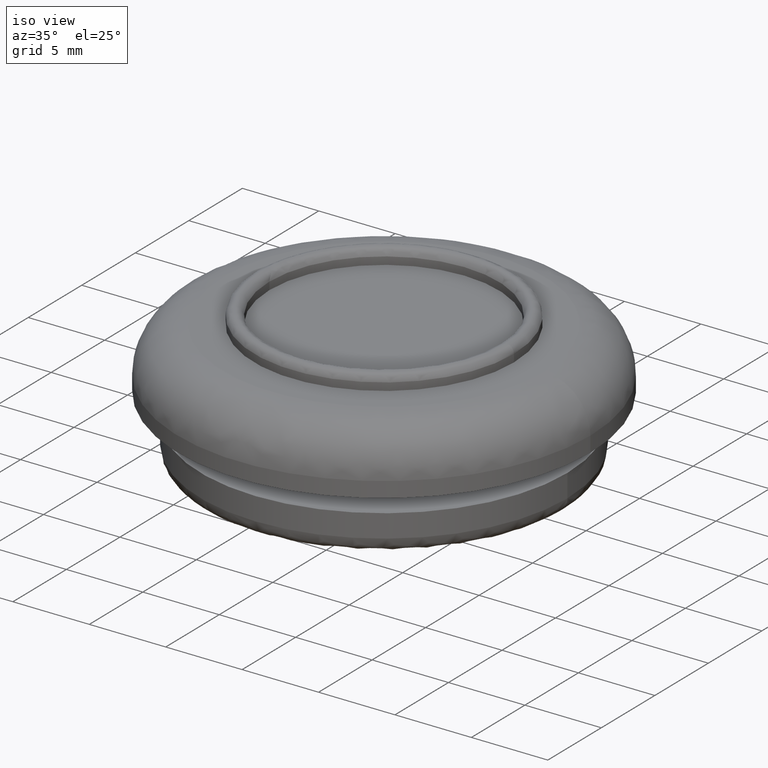
[diagram: clean part render]
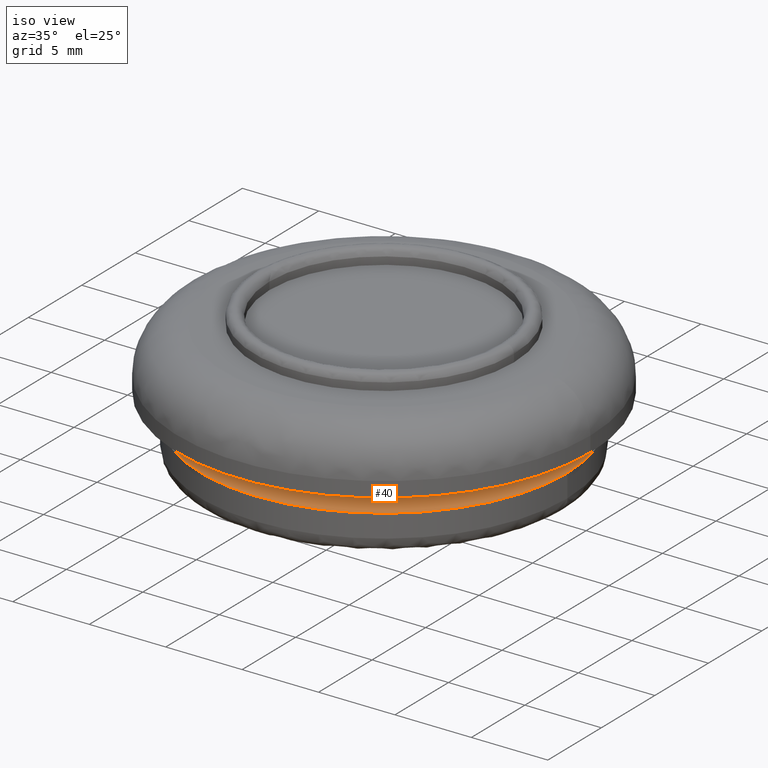
[diagram: same view with one face highlighted and labeled with its STEP entity id]
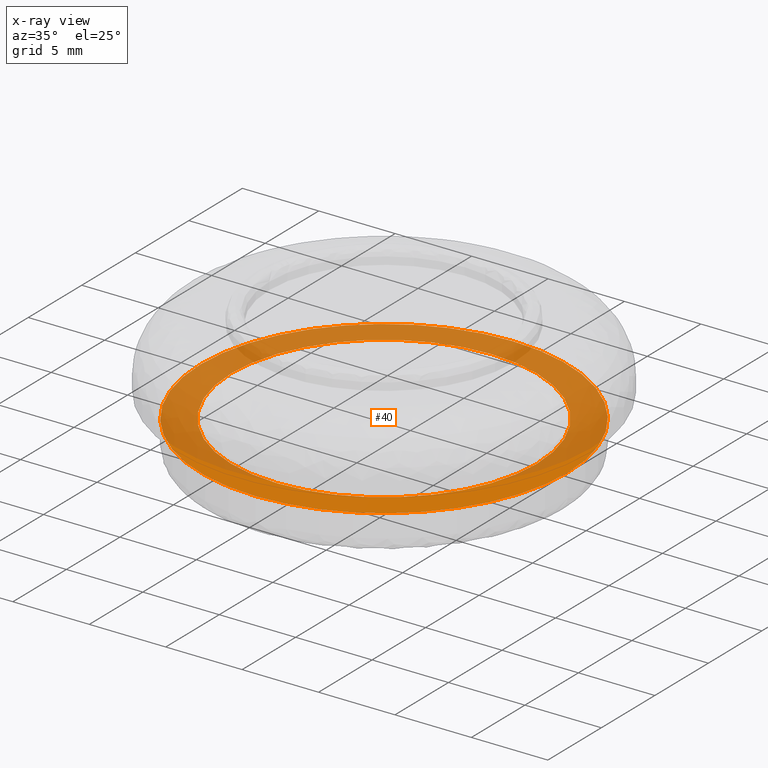
[diagram: x-ray of the same camera — body ghosted, the highlighted face saturated]
A machine part, iso view. The second image highlights one B-rep face of the part: STEP entity #40.
The next image is the same camera in x-ray: the body ghosted, the highlighted face saturated — about 67% of this face is hidden behind the body in this view.
In plain terms, the highlighted planar face has unit normal (-0, 0, -1).
Its self-contained STEP definition (entity closure, byte-faithful):
#40=ADVANCED_FACE('',(#65,#66),#64,.F.);
#64=PLANE('',#311);
#65=FACE_OUTER_BOUND('',#312,.T.);
#66=FACE_BOUND('',#313,.T.);
#308=CARTESIAN_POINT('',(3.04378069758E+002,-2.49415316290E+001,2.66137988893E+002));
#309=DIRECTION('',(-0.00000000000E+000,0.00000000000E+000,-1.00000000000E+000));
#310=DIRECTION('',(-1.00000000000E+000,0.00000000000E+000,0.00000000000E+000));
#311=AXIS2_PLACEMENT_3D('',#308,#309,#310);
#312=EDGE_LOOP('',(#558,#559));
#313=EDGE_LOOP('',(#560,#561));
#558=ORIENTED_EDGE('',*,*,#650,.F.);
#559=ORIENTED_EDGE('',*,*,#651,.F.);
#560=ORIENTED_EDGE('',*,*,#652,.T.);
#561=ORIENTED_EDGE('',*,*,#653,.T.);
#650=EDGE_CURVE('',#696,#697,#698,.T.);
#651=EDGE_CURVE('',#697,#696,#704,.T.);
#652=EDGE_CURVE('',#710,#711,#712,.T.);
#653=EDGE_CURVE('',#711,#710,#718,.T.);
#696=VERTEX_POINT('',#1000);
#697=VERTEX_POINT('',#1001);
#698=CIRCLE('',#1005,1.20000000000E+001);
#704=CIRCLE('',#1009,1.20000000000E+001);
#710=VERTEX_POINT('',#1010);
#711=VERTEX_POINT('',#1011);
#712=CIRCLE('',#1015,1.00000000000E+001);
#718=CIRCLE('',#1019,1.00000000000E+001);
#1000=CARTESIAN_POINT('',(2.88778069758E+002,-5.92118946467E-016,2.66137988893E+002));
#1001=CARTESIAN_POINT('',(2.64778069758E+002,0.00000000000E+000,2.66137988893E+002));
#1002=CARTESIAN_POINT('',(2.76778069758E+002,0.00000000000E+000,2.66137988893E+002));
#1003=DIRECTION('',(-0.00000000000E+000,0.00000000000E+000,-1.00000000000E+000));
#1004=DIRECTION('',(-1.00000000000E+000,-1.22460635382E-016,0.00000000000E+000));
#1005=AXIS2_PLACEMENT_3D('',#1002,#1003,#1004);
#1006=CARTESIAN_POINT('',(2.76778069758E+002,0.00000000000E+000,2.66137988893E+002));
#1007=DIRECTION('',(-0.00000000000E+000,0.00000000000E+000,-1.00000000000E+000));
#1008=DIRECTION('',(-1.00000000000E+000,-1.22460635382E-016,0.00000000000E+000));
#1009=AXIS2_PLACEMENT_3D('',#1006,#1007,#1008);
#1010=CARTESIAN_POINT('',(2.66778069758E+002,0.00000000000E+000,2.66137988893E+002));
#1011=CARTESIAN_POINT('',(2.86778069758E+002,5.92118946467E-016,2.66137988893E+002));
#1012=CARTESIAN_POINT('',(2.76778069758E+002,0.00000000000E+000,2.66137988893E+002));
#1013=DIRECTION('',(-0.00000000000E+000,0.00000000000E+000,-1.00000000000E+000));
#1014=DIRECTION('',(-1.00000000000E+000,-1.22460635382E-016,0.00000000000E+000));
#1015=AXIS2_PLACEMENT_3D('',#1012,#1013,#1014);
#1016=CARTESIAN_POINT('',(2.76778069758E+002,0.00000000000E+000,2.66137988893E+002));
#1017=DIRECTION('',(-0.00000000000E+000,0.00000000000E+000,-1.00000000000E+000));
#1018=DIRECTION('',(-1.00000000000E+000,-1.22460635382E-016,0.00000000000E+000));
#1019=AXIS2_PLACEMENT_3D('',#1016,#1017,#1018);